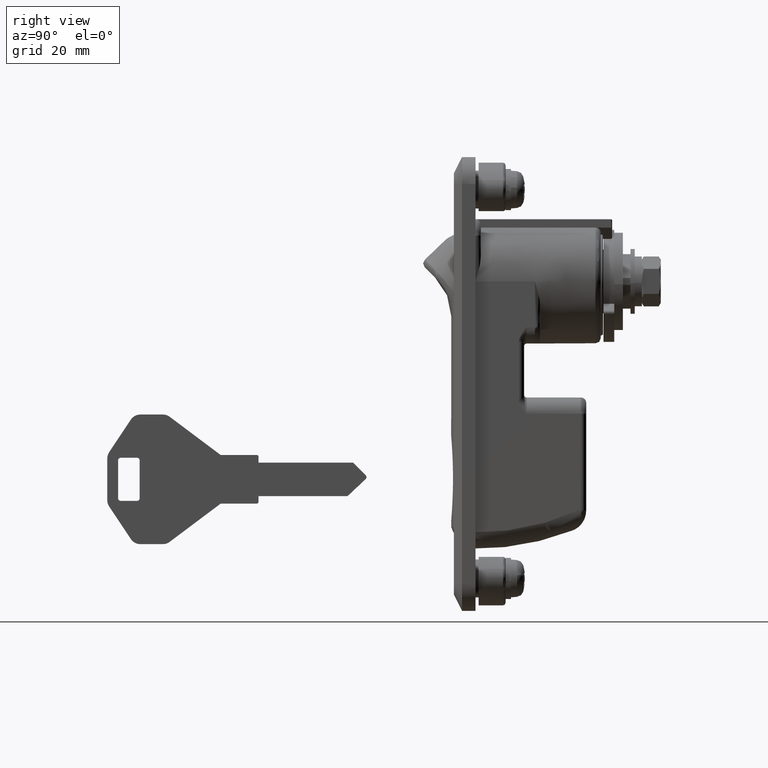
[diagram: clean part render]
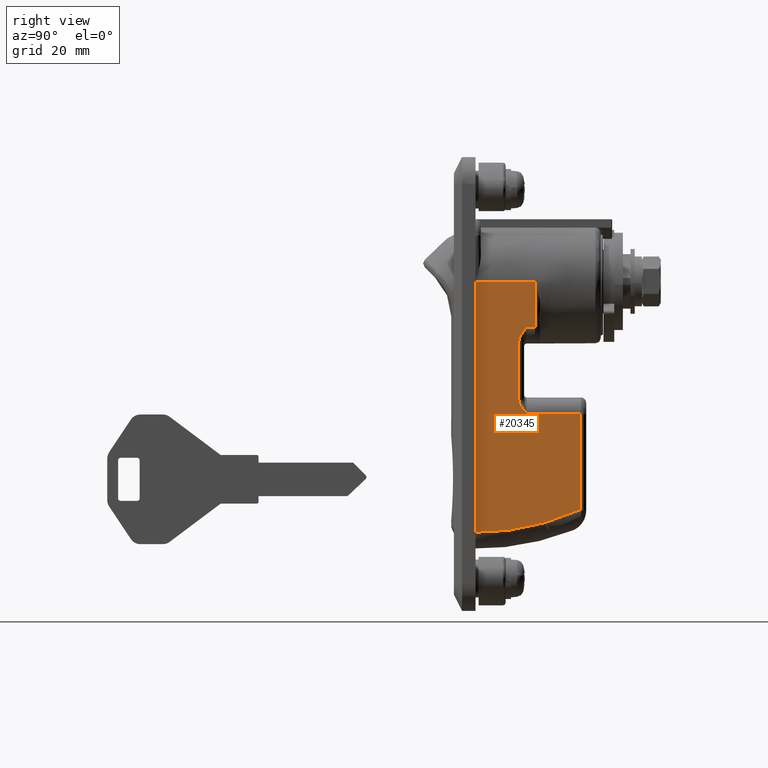
[diagram: same view with one face highlighted and labeled with its STEP entity id]
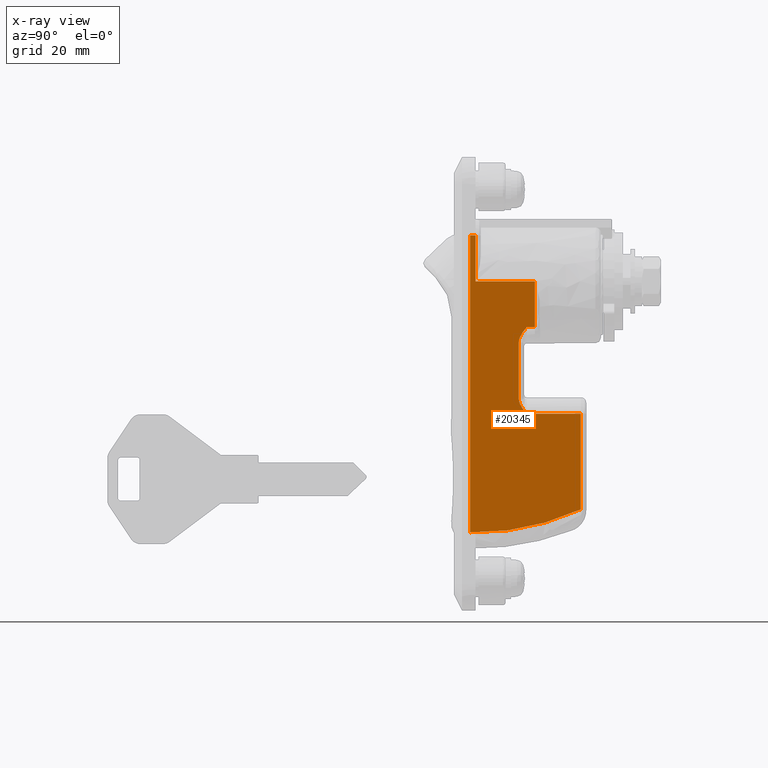
[diagram: x-ray of the same camera — body ghosted, the highlighted face saturated]
A machine part, right view. The second image highlights one B-rep face of the part: STEP entity #20345.
The next image is the same camera in x-ray: the body ghosted, the highlighted face saturated — about 0% of this face is hidden behind the body in this view.
In plain terms, the highlighted face is a freeform B-spline surface patch.
Its self-contained STEP definition (entity closure, byte-faithful):
#15546=CARTESIAN_POINT('',(10.500000000000201,-11.500000000000000,-24.500000000000000));
#15547=VERTEX_POINT('',#15546);
#15548=CARTESIAN_POINT('',(9.000000000000199,-11.500000000000000,-21.627718676731099));
#15549=VERTEX_POINT('',#15548);
#15550=CARTESIAN_POINT('',(10.500000000000201,-11.500000000000000,-24.500000000000000));
#15551=CARTESIAN_POINT('',(10.454881164250370,-11.500000000000000,-24.447901083293392));
#15552=CARTESIAN_POINT('',(10.409524617024280,-11.500000000000000,-24.395528066926680));
#15553=CARTESIAN_POINT('',(10.319319430072269,-11.500000000000000,-24.290806672567001));
#15554=CARTESIAN_POINT('',(10.274360172841050,-11.500000000000000,-24.238330762283251));
#15555=CARTESIAN_POINT('',(10.140342913697340,-11.500000000000000,-24.080211354864311));
#15556=CARTESIAN_POINT('',(10.052144194273300,-11.500000000000000,-23.973877169879959));
#15557=CARTESIAN_POINT('',(9.880350853527732,-11.500000000000000,-23.757508044154530));
#15558=CARTESIAN_POINT('',(9.796752553461218,-11.500000000000011,-23.647476060374071));
#15559=CARTESIAN_POINT('',(9.636549286855288,-11.500000000000000,-23.421790879117680));
#15560=CARTESIAN_POINT('',(9.560135007323106,-11.500000000000000,-23.306357122815449));
#15561=CARTESIAN_POINT('',(9.418322605719991,-11.500000000000000,-23.070513849426760));
#15562=CARTESIAN_POINT('',(9.352754105307465,-11.500000000000000,-22.949891658620889));
#15563=CARTESIAN_POINT('',(9.235036408853695,-11.500000000000000,-22.701857919242279));
#15564=CARTESIAN_POINT('',(9.182862556425356,-11.500000000000000,-22.574458845312680));
#15565=CARTESIAN_POINT('',(9.117224986715240,-11.500000000000000,-22.376973652875979));
#15566=CARTESIAN_POINT('',(9.097481456970941,-11.500000000000000,-22.310066193902902));
#15567=CARTESIAN_POINT('',(9.063227643065297,-11.500000000000000,-22.175924060917009));
#15568=CARTESIAN_POINT('',(9.048631996609426,-11.500000000000000,-22.108453795922191));
#15569=CARTESIAN_POINT('',(9.012990004059182,-11.500000000000000,-21.904758482583631));
#15570=CARTESIAN_POINT('',(9.000000000000210,-11.500000000000011,-21.767262889515241));
#15571=CARTESIAN_POINT('',(9.000000000000199,-11.500000000000000,-21.627718676731099));
#15572=B_SPLINE_CURVE_WITH_KNOTS('',3,(#15550,#15551,#15552,#15553,#15554,#15555,#15556,#15557,#15558,#15559,#15560,#15561,#15562,#15563,#15564,#15565,#15566,#15567,#15568,#15569,#15570,#15571),.UNSPECIFIED.,.F.,.U.,(4,2,2,2,2,2,2,2,2,2,4),(0.0,0.062499999999999,0.124999999999998,0.249999999999998,0.374999999999999,0.499999999999999,0.624999999999999,0.749999999999999,0.812500000000000,0.875000000000000,1.0),.UNSPECIFIED.);
#15573=EDGE_CURVE('',#15547,#15549,#15572,.T.);
#15632=CARTESIAN_POINT('',(9.000000000000199,-11.500000000000000,-11.372281323268981));
#15633=VERTEX_POINT('',#15632);
#15647=CARTESIAN_POINT('',(9.000000000000199,-11.500000000000000,-21.627718676731099));
#15648=CARTESIAN_POINT('',(9.000000000000199,-11.500000000000000,-11.372281323268981));
#15649=QUASI_UNIFORM_CURVE('',1,(#15647,#15648),.UNSPECIFIED.,.F.,.U.);
#15650=EDGE_CURVE('',#15549,#15633,#15649,.T.);
#15699=CARTESIAN_POINT('',(10.500000000000201,-11.500000000000000,-8.500000000000000));
#15700=VERTEX_POINT('',#15699);
#15724=CARTESIAN_POINT('',(9.000000000000199,-11.500000000000000,-11.372281323268981));
#15725=CARTESIAN_POINT('',(9.000000000000201,-11.500000000000000,-11.232737110484850));
#15726=CARTESIAN_POINT('',(9.012990004059171,-11.500000000000000,-11.095241517416440));
#15727=CARTESIAN_POINT('',(9.048631996609412,-11.500000000000000,-10.891546204077869));
#15728=CARTESIAN_POINT('',(9.063227643065284,-11.500000000000000,-10.824075939083050));
#15729=CARTESIAN_POINT('',(9.097481456970918,-11.500000000000000,-10.689933806097160));
#15730=CARTESIAN_POINT('',(9.117224986715227,-11.500000000000000,-10.623026347124060));
#15731=CARTESIAN_POINT('',(9.182862556425336,-11.500000000000000,-10.425541154687370));
#15732=CARTESIAN_POINT('',(9.235036408853674,-11.500000000000000,-10.298142080757760));
#15733=CARTESIAN_POINT('',(9.352754105307444,-11.500000000000000,-10.050108341379159));
#15734=CARTESIAN_POINT('',(9.418322605719970,-11.500000000000000,-9.929486150573291));
#15735=CARTESIAN_POINT('',(9.560135007323083,-11.500000000000000,-9.693642877184589));
#15736=CARTESIAN_POINT('',(9.636549286855274,-11.500000000000000,-9.578209120882342));
#15737=CARTESIAN_POINT('',(9.796752553461202,-11.500000000000000,-9.352523939625966));
#15738=CARTESIAN_POINT('',(9.880350853527720,-11.500000000000011,-9.242491955845495));
#15739=CARTESIAN_POINT('',(10.052144194273280,-11.500000000000000,-9.026122830120055));
#15740=CARTESIAN_POINT('',(10.140342913697330,-11.500000000000000,-8.919788645135702));
#15741=CARTESIAN_POINT('',(10.274360172841050,-11.500000000000000,-8.761669237716763));
#15742=CARTESIAN_POINT('',(10.319319430072269,-11.500000000000000,-8.709193327433017));
#15743=CARTESIAN_POINT('',(10.409524617024280,-11.500000000000000,-8.604471933073322));
#15744=CARTESIAN_POINT('',(10.454881164250541,-11.500000000000000,-8.552098916706754));
#15745=CARTESIAN_POINT('',(10.500000000000201,-11.500000000000000,-8.500000000000000));
#15746=B_SPLINE_CURVE_WITH_KNOTS('',3,(#15724,#15725,#15726,#15727,#15728,#15729,#15730,#15731,#15732,#15733,#15734,#15735,#15736,#15737,#15738,#15739,#15740,#15741,#15742,#15743,#15744,#15745),.UNSPECIFIED.,.F.,.U.,(4,2,2,2,2,2,2,2,2,2,4),(0.0,0.125000000000001,0.187500000000001,0.250000000000001,0.375000000000000,0.500000000000000,0.625000000000000,0.750000000000000,0.875000000000000,0.937500000000000,1.0),.UNSPECIFIED.);
#15747=EDGE_CURVE('',#15633,#15700,#15746,.T.);
#16890=CARTESIAN_POINT('',(12.000000000000201,-11.500000000000000,-8.500000000000000));
#16891=VERTEX_POINT('',#16890);
#16949=CARTESIAN_POINT('',(12.000000000000201,-11.500000000000000,0.0));
#16950=VERTEX_POINT('',#16949);
#16977=CARTESIAN_POINT('',(12.000000000000201,-11.500000000000000,-8.500000000000000));
#16978=CARTESIAN_POINT('',(12.000000000000201,-11.500000000000000,0.0));
#16979=QUASI_UNIFORM_CURVE('',1,(#16977,#16978),.UNSPECIFIED.,.F.,.U.);
#16980=EDGE_CURVE('',#16891,#16950,#16979,.T.);
#17443=CARTESIAN_POINT('',(1.000000000000200,-11.500000000000000,0.0));
#17444=VERTEX_POINT('',#17443);
#17476=CARTESIAN_POINT('',(1.000000000000222,-11.500000000000000,8.500000000000000));
#17477=VERTEX_POINT('',#17476);
#17491=CARTESIAN_POINT('',(1.000000000000200,-11.500000000000000,0.0));
#17492=CARTESIAN_POINT('',(1.000000000000222,-11.500000000000000,8.500000000000000));
#17493=QUASI_UNIFORM_CURVE('',1,(#17491,#17492),.UNSPECIFIED.,.F.,.U.);
#17494=EDGE_CURVE('',#17444,#17477,#17493,.T.);
#18483=CARTESIAN_POINT('',(20.500000000000000,-11.500000000000000,-42.213741838410847));
#18484=VERTEX_POINT('',#18483);
#18532=CARTESIAN_POINT('',(20.500000000000000,-11.500000000000000,-24.500000000000000));
#18533=VERTEX_POINT('',#18532);
#18534=CARTESIAN_POINT('',(20.500000000000000,-11.500000000000000,-42.213741838410847));
#18535=CARTESIAN_POINT('',(20.500000000000000,-11.500000000000000,-24.500000000000000));
#18536=QUASI_UNIFORM_CURVE('',1,(#18534,#18535),.UNSPECIFIED.,.F.,.U.);
#18537=EDGE_CURVE('',#18484,#18533,#18536,.T.);
#19113=CARTESIAN_POINT('',(0.0,-11.500000000000000,-46.489246068311303));
#19114=VERTEX_POINT('',#19113);
#19115=CARTESIAN_POINT('',(-7.155734E-015,-11.500000000000000,-46.489246068311317));
#19116=CARTESIAN_POINT('',(10.744052335672883,-11.499999999999996,-46.720354405062743));
#19117=CARTESIAN_POINT('',(20.500000000000021,-11.500000000000000,-42.213741838410947));
#19125=(BOUNDED_CURVE()B_SPLINE_CURVE(2,(#19115,#19116,#19117),.UNSPECIFIED.,.F.,.U.)CURVE()GEOMETRIC_REPRESENTATION_ITEM()QUASI_UNIFORM_CURVE()RATIONAL_B_SPLINE_CURVE((1.0,0.974318754776570,1.0))REPRESENTATION_ITEM(''));
#19126=EDGE_CURVE('',#19114,#18484,#19125,.T.);
#19271=CARTESIAN_POINT('',(10.500000000000201,-11.500000000000000,-8.500000000000000));
#19272=CARTESIAN_POINT('',(12.000000000000201,-11.500000000000000,-8.500000000000000));
#19273=QUASI_UNIFORM_CURVE('',1,(#19271,#19272),.UNSPECIFIED.,.F.,.U.);
#19274=EDGE_CURVE('',#15700,#16891,#19273,.T.);
#19294=CARTESIAN_POINT('',(20.500000000000000,-11.500000000000000,-24.500000000000000));
#19295=CARTESIAN_POINT('',(10.500000000000201,-11.500000000000000,-24.500000000000000));
#19296=QUASI_UNIFORM_CURVE('',1,(#19294,#19295),.UNSPECIFIED.,.F.,.U.);
#19297=EDGE_CURVE('',#18533,#15547,#19296,.T.);
#19457=CARTESIAN_POINT('',(0.0,-11.500000000000000,8.500000000000000));
#19458=VERTEX_POINT('',#19457);
#19459=CARTESIAN_POINT('',(1.000000000000222,-11.500000000000000,8.500000000000000));
#19460=CARTESIAN_POINT('',(0.0,-11.500000000000000,8.500000000000000));
#19461=QUASI_UNIFORM_CURVE('',1,(#19459,#19460),.UNSPECIFIED.,.F.,.U.);
#19462=EDGE_CURVE('',#17477,#19458,#19461,.T.);
#20318=CARTESIAN_POINT('',(-1.023974960267021,-11.500000000000000,-49.246260843062338));
#20319=CARTESIAN_POINT('',(21.523975510119872,-11.500000000000000,-49.246260843062338));
#20320=CARTESIAN_POINT('',(-1.023974960267021,-11.500000000000000,11.247204315835370));
#20321=CARTESIAN_POINT('',(21.523975510119872,-11.500000000000000,11.247204315835370));
#20322=B_SPLINE_SURFACE_WITH_KNOTS('',1,1,((#20318,#20320),(#20319,#20321)),.UNSPECIFIED.,.F.,.F.,.U.,(2,2),(2,2),(0.0,22.547950470386890),(0.0,60.493465158897713),.UNSPECIFIED.);
#20323=ORIENTED_EDGE('',*,*,#19297,.T.);
#20324=ORIENTED_EDGE('',*,*,#15573,.T.);
#20325=ORIENTED_EDGE('',*,*,#15650,.T.);
#20326=ORIENTED_EDGE('',*,*,#15747,.T.);
#20327=ORIENTED_EDGE('',*,*,#19274,.T.);
#20328=ORIENTED_EDGE('',*,*,#16980,.T.);
#20329=CARTESIAN_POINT('',(1.000000000000200,-11.500000000000000,0.0));
#20330=CARTESIAN_POINT('',(12.000000000000201,-11.500000000000000,0.0));
#20331=QUASI_UNIFORM_CURVE('',1,(#20329,#20330),.UNSPECIFIED.,.F.,.U.);
#20332=EDGE_CURVE('',#17444,#16950,#20331,.T.);
#20333=ORIENTED_EDGE('',*,*,#20332,.F.);
#20334=ORIENTED_EDGE('',*,*,#17494,.T.);
#20335=ORIENTED_EDGE('',*,*,#19462,.T.);
#20336=CARTESIAN_POINT('',(0.0,-11.500000000000000,-46.489246068311303));
#20337=CARTESIAN_POINT('',(0.0,-11.500000000000000,8.500000000000000));
#20338=QUASI_UNIFORM_CURVE('',1,(#20336,#20337),.UNSPECIFIED.,.F.,.U.);
#20339=EDGE_CURVE('',#19114,#19458,#20338,.T.);
#20340=ORIENTED_EDGE('',*,*,#20339,.F.);
#20341=ORIENTED_EDGE('',*,*,#19126,.T.);
#20342=ORIENTED_EDGE('',*,*,#18537,.T.);
#20343=EDGE_LOOP('',(#20323,#20324,#20325,#20326,#20327,#20328,#20333,#20334,#20335,#20340,#20341,#20342));
#20344=FACE_OUTER_BOUND('',#20343,.T.);
#20345=ADVANCED_FACE('',(#20344),#20322,.T.);